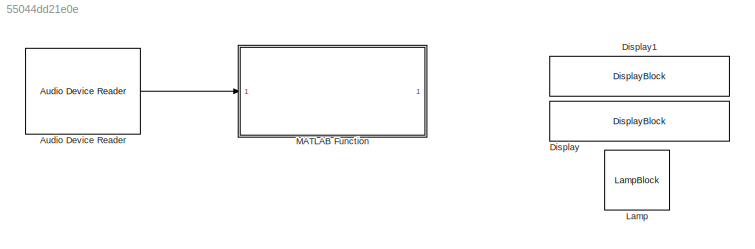
MODEL slx_55044dd21e0e
KIND model
CONFIG AbsTol = auto
CONFIG EnableMultiTasking = off
CONFIG FixedStep = auto
CONFIG MaxStep = auto
CONFIG MinStep = auto
CONFIG RelTol = 1e-3
CONFIG SampleTimeConstraint = Unconstrained
CONFIG SolverName = VariableStepAuto
CONFIG StartTime = 0.0
CONFIG StopTime = 10.0
BLOCK [Reference] Audio Device Reader  REF=audiosources/Audio Device
Reader
  SourceBlock = audiosources/Audio Device\nReader
  SourceType = Audio Device Reader
BLOCK [DisplayBlock] Display
  GridColor = [0.502, 0.502, 0.502]
  LabelPosition = Hide
  Transparency = 1
BLOCK [DisplayBlock] Display1
  GridColor = [0.502, 0.502, 0.502]
  LabelPosition = Hide
  Transparency = 1
BLOCK [LampBlock] Lamp
  DefaultColor = [192.0, 192.0, 192.0]
  LabelPosition = Hide
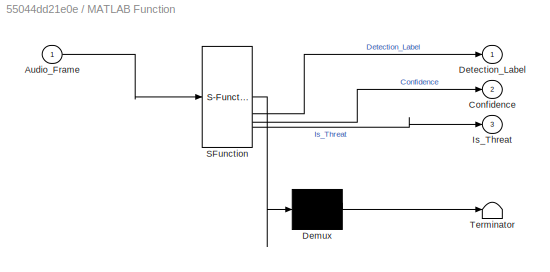
BLOCK [SubSystem] MATLAB Function
  ErrorFcn = Stateflow.Translate.translate
  PermitHierarchicalResolution = ExplicitOnly
  SFBlockType = MATLAB Function
  TreatAsAtomicUnit = on
BLOCK [Demux] MATLAB Function/ Demux 
  Outputs = 1
BLOCK [S-Function] MATLAB Function/ SFunction 
  EnableBusSupport = off
  FunctionName = sf_sfun
  PortCounts = [1 4]
  SFcnIsStateOwnerBlock = off
  SFunctionDeploymentMode = off
  Tag = Stateflow S-Function 2
BLOCK [Terminator] MATLAB Function/ Terminator 
BLOCK [Inport] MATLAB Function/Audio_Frame
BLOCK [Outport] MATLAB Function/Confidence
  Port = 2
BLOCK [Outport] MATLAB Function/Detection_Label
BLOCK [Outport] MATLAB Function/Is_Threat
  Port = 3
LINE Audio Device Reader:1 -> MATLAB Function:1
CHART MATLAB Function states=1 transitions=1
  STATE_LABEL 'eML_blk_kernel()'
  STATE_LABEL 'SCRIPT:\nfunction [Detection_Label, Confidence, Is_Threat] = fcn(Audio_Frame)\n    % GALAMSEY DETECTOR - STRING OUTPUT VERSION\n    \n    % 1. Declare the helper function as extrinsic\n    coder.extrinsic(\'run_galamsey_inference\');\n\n    % 2. Initialize Outputs\n    % We define \'Detection_Label\' as a string variable\n    Detection_Label = "Initializing..."; \n    Confidence = 0.0;\n    Is_Threat = 0;\n\n    %...<+573ch>'
CHART  states=0 transitions=0
